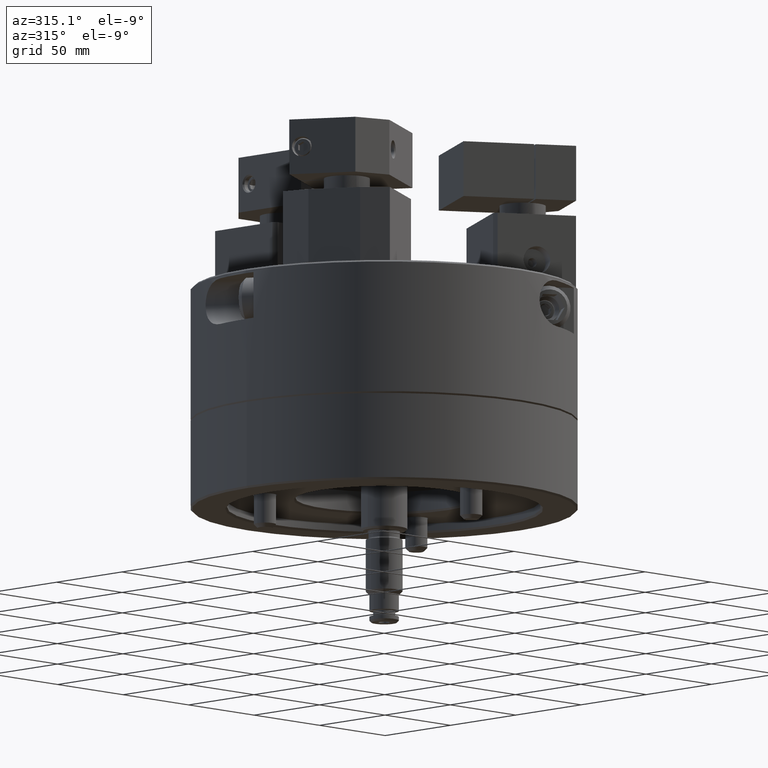
[diagram: clean part render]
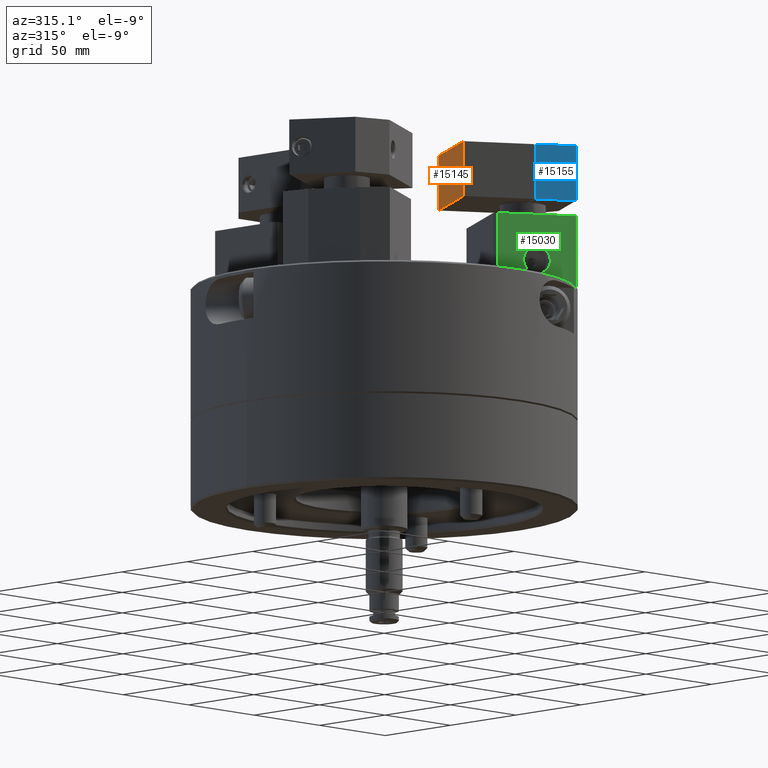
[diagram: same view with three faces highlighted in distinct colors, each labeled with its STEP entity id]
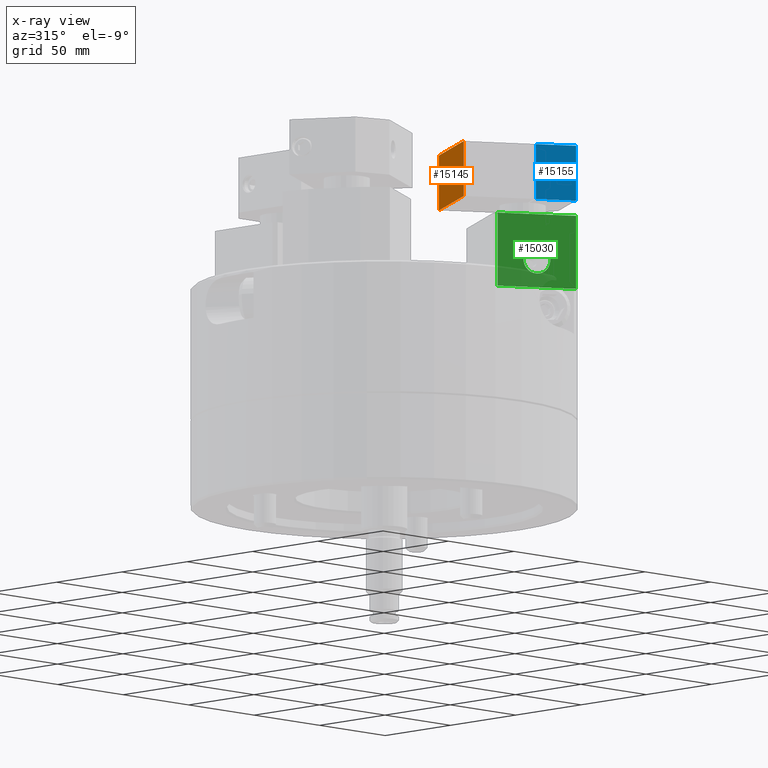
[diagram: x-ray of the same camera — body ghosted, the three highlighted faces saturated]
A machine part, auxiliary view with three faces highlighted in distinct colors.
The next image is the same camera in x-ray (body ghosted, the three faces saturated) — at least one of them is partly hidden behind the body in this view.
Their STEP definitions:

[orange] entity #15145 — the highlighted planar face has unit normal (0.866, -0.5, 0).
#862=LINE('',#26872,#1702);
#863=LINE('',#26875,#1703);
#864=LINE('',#26877,#1704);
#865=LINE('',#26879,#1705);
#1702=VECTOR('',#21804,1000.);
#1703=VECTOR('',#21805,1000.);
#1704=VECTOR('',#21806,1000.);
#1705=VECTOR('',#21807,1000.);
#2267=PLANE('',#17395);
#6547=ORIENTED_EDGE('',*,*,#8544,.T.);
#6548=ORIENTED_EDGE('',*,*,#8545,.F.);
#6549=ORIENTED_EDGE('',*,*,#8546,.F.);
#6550=ORIENTED_EDGE('',*,*,#8547,.T.);
#8544=EDGE_CURVE('',#9993,#9994,#862,.T.);
#8545=EDGE_CURVE('',#9995,#9994,#863,.T.);
#8546=EDGE_CURVE('',#9996,#9995,#864,.T.);
#8547=EDGE_CURVE('',#9996,#9993,#865,.T.);
#9993=VERTEX_POINT('',#26873);
#9994=VERTEX_POINT('',#26874);
#9995=VERTEX_POINT('',#26876);
#9996=VERTEX_POINT('',#26878);
#11851=EDGE_LOOP('',(#6547,#6548,#6549,#6550));
#13659=FACE_BOUND('',#11851,.T.);
#15145=ADVANCED_FACE('',(#13659),#2267,.F.);
#17395=AXIS2_PLACEMENT_3D('',#26871,#21802,#21803);
#21802=DIRECTION('',(0.866025403784437,-0.500000000000003,0.));
#21803=DIRECTION('',(0.,0.,1.));
#21804=DIRECTION('',(-0.500000000000003,-0.866025403784437,0.));
#21805=DIRECTION('',(0.,0.,-1.));
#21806=DIRECTION('',(-0.500000000000003,-0.866025403784437,0.));
#21807=DIRECTION('',(0.,0.,-1.));
#26871=CARTESIAN_POINT('',(45.4759526419165,3.76666049839528,152.));
#26872=CARTESIAN_POINT('',(45.4759526419165,3.76666049839528,122.));
#26873=CARTESIAN_POINT('',(45.4759526419165,3.76666049839528,122.));
#26874=CARTESIAN_POINT('',(19.4759526419163,-41.2666604983954,122.));
#26875=CARTESIAN_POINT('',(19.4759526419163,-41.2666604983954,152.));
#26876=CARTESIAN_POINT('',(19.4759526419163,-41.2666604983954,152.));
#26877=CARTESIAN_POINT('',(45.4759526419165,3.76666049839528,152.));
#26878=CARTESIAN_POINT('',(45.4759526419165,3.76666049839528,152.));
#26879=CARTESIAN_POINT('',(45.4759526419165,3.76666049839528,152.));

[blue] entity #15155 — the highlighted planar face has unit normal (0.5, 0.866, 0).
#839=LINE('',#26813,#1679);
#861=LINE('',#26870,#1701);
#869=LINE('',#26894,#1709);
#870=LINE('',#26897,#1710);
#1679=VECTOR('',#21761,1000.);
#1701=VECTOR('',#21801,1000.);
#1709=VECTOR('',#21833,1000.);
#1710=VECTOR('',#21838,1000.);
#2274=PLANE('',#17411);
#6597=ORIENTED_EDGE('',*,*,#8517,.F.);
#6598=ORIENTED_EDGE('',*,*,#8556,.T.);
#6599=ORIENTED_EDGE('',*,*,#8543,.F.);
#6600=ORIENTED_EDGE('',*,*,#8558,.F.);
#8517=EDGE_CURVE('',#9967,#9968,#839,.T.);
#8543=EDGE_CURVE('',#9992,#9991,#861,.T.);
#8556=EDGE_CURVE('',#9967,#9991,#869,.T.);
#8558=EDGE_CURVE('',#9968,#9992,#870,.T.);
#9967=VERTEX_POINT('',#26814);
#9968=VERTEX_POINT('',#26815);
#9991=VERTEX_POINT('',#26867);
#9992=VERTEX_POINT('',#26869);
#11864=EDGE_LOOP('',(#6597,#6598,#6599,#6600));
#13672=FACE_BOUND('',#11864,.T.);
#15155=ADVANCED_FACE('',(#13672),#2274,.F.);
#17411=AXIS2_PLACEMENT_3D('',#26901,#21844,#21845);
#21761=DIRECTION('',(0.,0.,1.));
#21801=DIRECTION('',(0.,0.,-1.));
#21833=DIRECTION('',(0.866025403784437,-0.500000000000003,0.));
#21838=DIRECTION('',(0.866025403784437,-0.500000000000003,0.));
#21844=DIRECTION('',(0.500000000000003,0.866025403784437,0.));
#21845=DIRECTION('',(0.,0.,1.));
#26813=CARTESIAN_POINT('',(54.549981495186,-61.5166604983956,152.));
#26814=CARTESIAN_POINT('',(54.549981495186,-61.5166604983956,122.));
#26815=CARTESIAN_POINT('',(54.549981495186,-61.5166604983956,152.));
#26867=CARTESIAN_POINT('',(74.0355530803359,-72.7666604983956,122.));
#26869=CARTESIAN_POINT('',(74.0355530803359,-72.7666604983956,152.));
#26870=CARTESIAN_POINT('',(74.0355530803359,-72.7666604983956,152.));
#26894=CARTESIAN_POINT('',(19.4759526419163,-41.2666604983954,122.));
#26897=CARTESIAN_POINT('',(19.4759526419163,-41.2666604983954,152.));
#26901=CARTESIAN_POINT('',(19.4759526419163,-41.2666604983954,152.));

[green] entity #15030 — the highlighted planar face has unit normal (0.5, 0.866, 0).
#711=LINE('',#26228,#1551);
#719=LINE('',#26245,#1559);
#733=LINE('',#26273,#1573);
#734=LINE('',#26275,#1574);
#1551=VECTOR('',#21275,1000.);
#1559=VECTOR('',#21285,1000.);
#1573=VECTOR('',#21311,1000.);
#1574=VECTOR('',#21314,1000.);
#2201=PLANE('',#17214);
#3144=CIRCLE('',#17152,7.5);
#6126=ORIENTED_EDGE('',*,*,#8308,.T.);
#6127=ORIENTED_EDGE('',*,*,#8330,.F.);
#6128=ORIENTED_EDGE('',*,*,#8331,.F.);
#6129=ORIENTED_EDGE('',*,*,#8316,.T.);
#6130=ORIENTED_EDGE('',*,*,#8276,.T.);
#8276=EDGE_CURVE('',#9779,#9779,#3144,.T.);
#8308=EDGE_CURVE('',#9811,#9812,#711,.T.);
#8316=EDGE_CURVE('',#9819,#9811,#719,.T.);
#8330=EDGE_CURVE('',#9826,#9812,#733,.T.);
#8331=EDGE_CURVE('',#9819,#9826,#734,.T.);
#9779=VERTEX_POINT('',#26131);
#9811=VERTEX_POINT('',#26229);
#9812=VERTEX_POINT('',#26230);
#9819=VERTEX_POINT('',#26246);
#9826=VERTEX_POINT('',#26272);
#11674=EDGE_LOOP('',(#6126,#6127,#6128,#6129));
#11675=EDGE_LOOP('',(#6130));
#13479=FACE_BOUND('',#11674,.T.);
#13480=FACE_BOUND('',#11675,.T.);
#15030=ADVANCED_FACE('',(#13479,#13480),#2201,.F.);
#17152=AXIS2_PLACEMENT_3D('',#26130,#21165,#21166);
#17214=AXIS2_PLACEMENT_3D('',#26274,#21312,#21313);
#21165=DIRECTION('',(0.500000000000003,0.866025403784437,0.));
#21166=DIRECTION('',(0.,0.,1.));
#21275=DIRECTION('',(0.866025403784437,-0.500000000000003,0.));
#21285=DIRECTION('',(0.,0.,-1.));
#21311=DIRECTION('',(0.,0.,-1.));
#21312=DIRECTION('',(0.500000000000003,0.866025403784437,0.));
#21313=DIRECTION('',(0.,0.,1.));
#21314=DIRECTION('',(0.866025403784437,-0.500000000000003,0.));
#26130=CARTESIAN_POINT('',(52.1169687932938,-64.7307621135333,88.));
#26131=CARTESIAN_POINT('',(52.1169687932938,-64.7307621135333,95.5));
#26228=CARTESIAN_POINT('',(33.0644099100362,-53.7307621135332,73.));
#26229=CARTESIAN_POINT('',(33.0644099100362,-53.7307621135332,73.));
#26230=CARTESIAN_POINT('',(71.0368417743716,-75.6541558721922,73.));
#26245=CARTESIAN_POINT('',(33.0644099100362,-53.7307621135332,113.));
#26246=CARTESIAN_POINT('',(33.0644099100362,-53.7307621135332,113.));
#26272=CARTESIAN_POINT('',(71.0368417743716,-75.6541558721922,113.));
#26273=CARTESIAN_POINT('',(71.0368417743716,-75.6541558721922,113.));
#26274=CARTESIAN_POINT('',(33.0644099100362,-53.7307621135332,113.));
#26275=CARTESIAN_POINT('',(33.0644099100362,-53.7307621135332,113.));